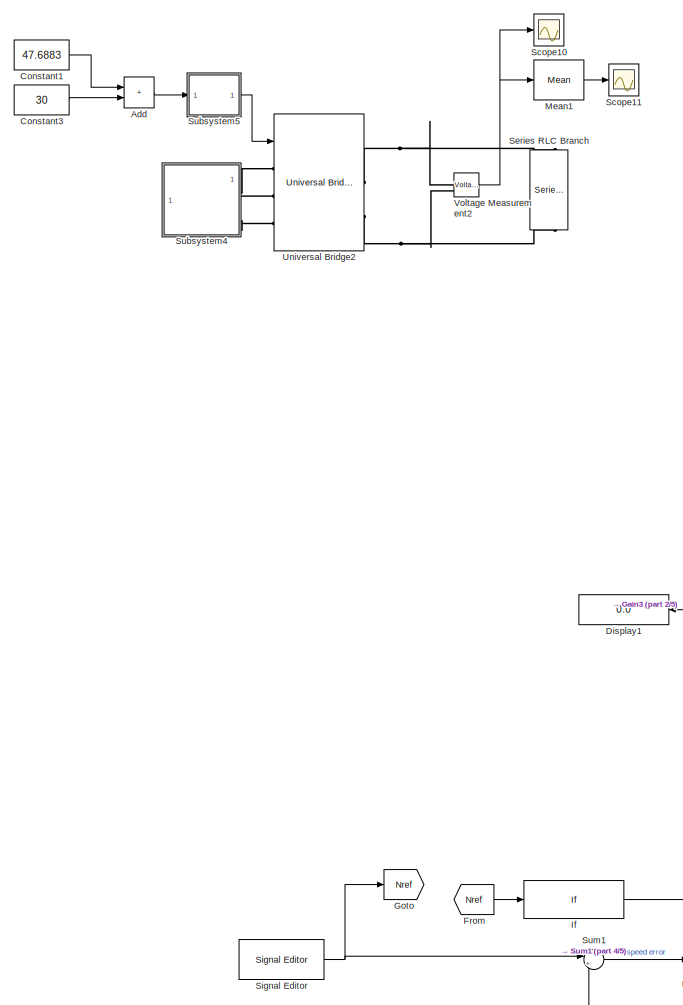
[diagram: root canvas - part 1/5, left side, full height]
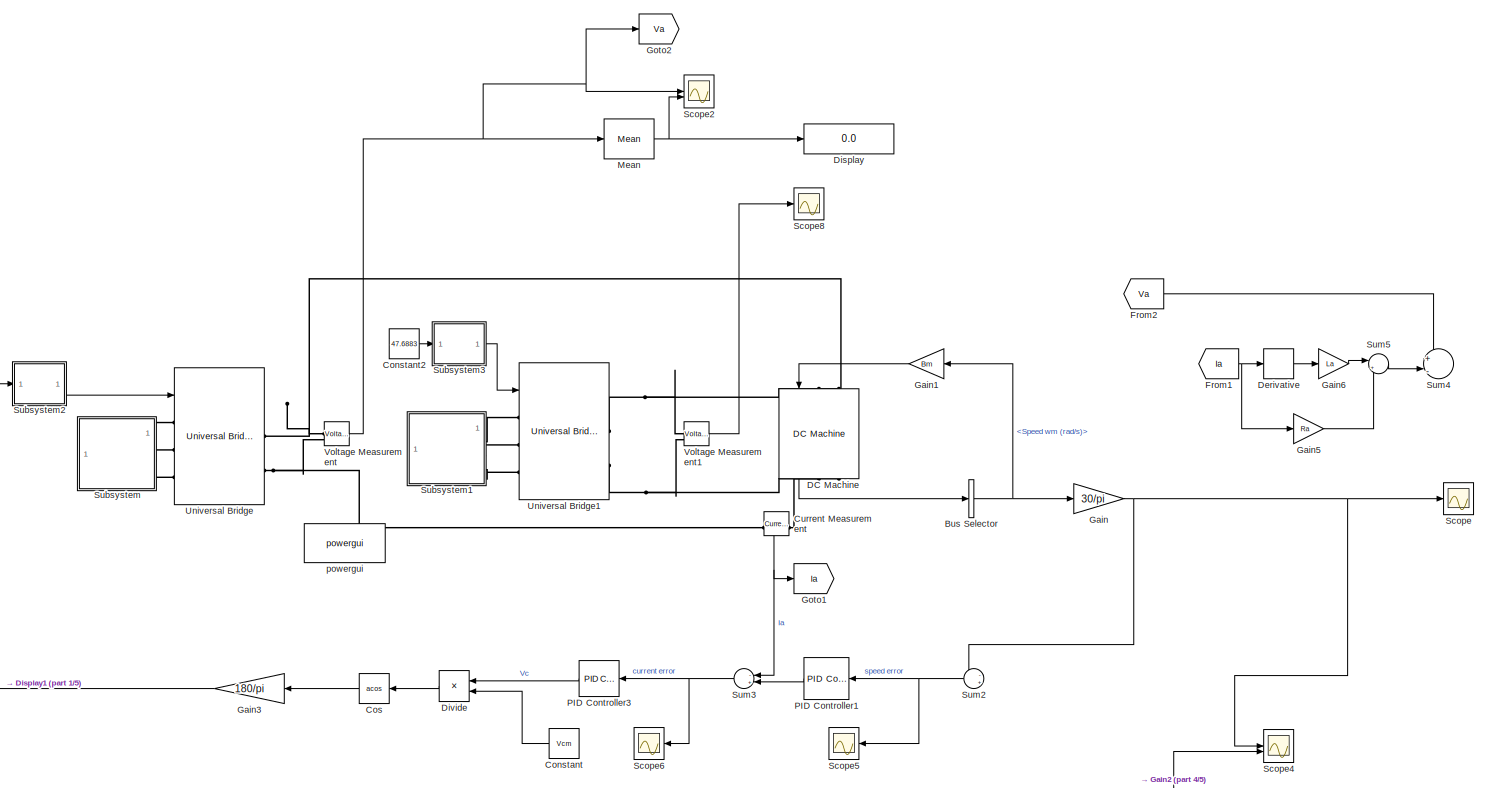
[diagram: root canvas - part 2/5, central region]
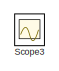
[diagram: root canvas - part 3/5, middle right region]
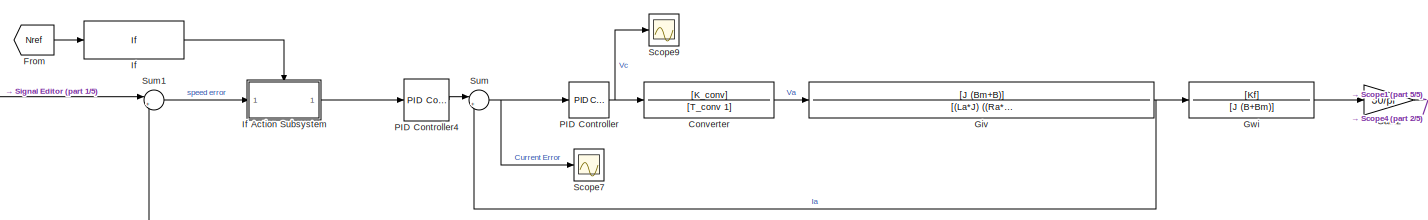
[diagram: root canvas - part 4/5, bottom center region]
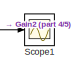
[diagram: root canvas - part 5/5, bottom right region]
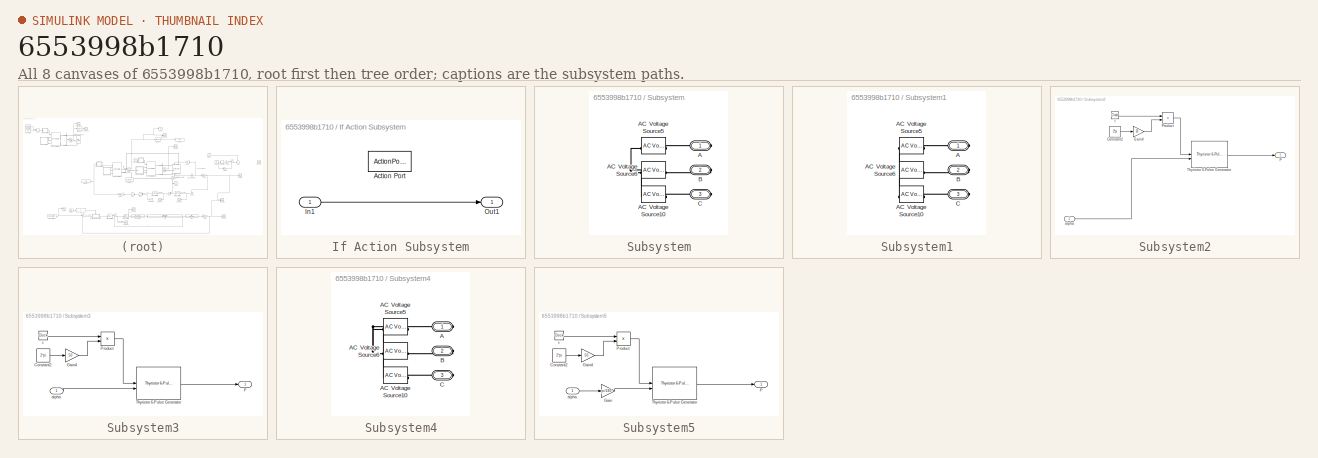
[diagram: thumbnail index - all 8 canvases of the model, root first then tree order]
MODEL slx_6553998b1710
KIND model
CONFIG AbsTol = auto
CONFIG EnableMultiTasking = off
CONFIG FixedStep = auto
CONFIG MaxStep = auto
CONFIG MinStep = auto
CONFIG RelTol = 1e-3
CONFIG SampleTimeConstraint = Unconstrained
CONFIG SolverName = VariableStepAuto
CONFIG StartTime = 0.0
CONFIG StopTime = 20
BLOCK [Sum] Add
  IconShape = rectangular
BLOCK [BusSelector] Bus Selector
  OutputSignals = Speed wm (rad/s)
BLOCK [Constant] Constant
  NameLocation = top
  Value = Vcm
BLOCK [Constant] Constant1
  Value = 47.6883
BLOCK [Constant] Constant2
  Value = 47.6883
BLOCK [Constant] Constant3
  Value = 30
BLOCK [TransferFcn] Converter
  Denominator = [T_conv 1]
  Numerator = [K_conv]
BLOCK [Trigonometry] Cos
  NameLocation = top
  Operator = acos
BLOCK [Reference] Current Measurement  REF=spsCurrentMeasurementLib/Current Measurement
  LibrarySourceBlock = sps_lib/Sensors and Measurements/Current Measurement
  NameLocation = top
  SourceBlock = spsCurrentMeasurementLib/Current Measurement
  SourceType = Current Measurement
  UserDataPersistent = on
BLOCK [Reference] DC Machine  REF=spsDCMachineLib/DC Machine
  LibrarySourceBlock = sps_lib/Electrical Machines/DC Machine
  NameLocation = left
  SourceBlock = spsDCMachineLib/DC Machine
  SourceType = DC machine
BLOCK [Derivative] Derivative
BLOCK [Display] Display
  Decimation = 1
BLOCK [Display] Display1
  Decimation = 1
  NameLocation = top
BLOCK [Product] Divide
  Inputs = */
  NameLocation = top
BLOCK [From] From
  GotoTag = Nref
BLOCK [From] From1
  GotoTag = Ia
BLOCK [From] From2
  GotoTag = Va
BLOCK [Gain] Gain
  Gain = 30/pi
BLOCK [Gain] Gain1
  Gain = Bm
  NameLocation = top
BLOCK [Gain] Gain2
  Gain = 30/pi
BLOCK [Gain] Gain3
  Gain = 180/pi
  NameLocation = top
BLOCK [Gain] Gain5
  Gain = Ra
BLOCK [Gain] Gain6
  Gain = La
BLOCK [TransferFcn] Giv
  Denominator = [(La*J) ((Ra*J)+((Bm+B)*La)) (Ra*(Bm+B)+Kf^2) ]
  Numerator = [J (Bm+B)]
BLOCK [Goto] Goto
  GotoTag = Nref
BLOCK [Goto] Goto1
  GotoTag = Ia
BLOCK [Goto] Goto2
  GotoTag = Va
BLOCK [TransferFcn] Gwi
  Denominator = [J (B+Bm)]
  Numerator = [Kf]
BLOCK [If] If
  IfExpression = u1 <= 1700
BLOCK [SubSystem] If Action Subsystem
  TreatAsAtomicUnit = on
BLOCK [ActionPort] If Action Subsystem/Action Port
  ActionPortLabel = if(u1 <= 1700)
BLOCK [Inport] If Action Subsystem/In1
BLOCK [Outport] If Action Subsystem/Out1
BLOCK [Reference] Mean  REF=spsMeanLib/Mean
  LibrarySourceBlock = sps_lib/Sensors and Measurements/Mean
  SourceBlock = spsMeanLib/Mean
  SourceType = Mean
BLOCK [Reference] Mean1  REF=spsMeanLib/Mean
  LibrarySourceBlock = sps_lib/Sensors and Measurements/Mean
  SourceBlock = spsMeanLib/Mean
  SourceType = Mean
BLOCK [Reference] PID Controller  REF=slpidlib/PID Controller
  LibrarySourceBlock = simulink/Continuous/PID Controller
  SourceBlock = slpidlib/PID Controller
  SourceType = PID 1dof
BLOCK [Reference] PID Controller1  REF=slpidlib/PID Controller
  LibrarySourceBlock = simulink/Continuous/PID Controller
  NameLocation = top
  SourceBlock = slpidlib/PID Controller
  SourceType = PID 1dof
BLOCK [Reference] PID Controller3  REF=slpidlib/PID Controller
  LibrarySourceBlock = simulink/Continuous/PID Controller
  NameLocation = top
  SourceBlock = slpidlib/PID Controller
  SourceType = PID 1dof
BLOCK [Reference] PID Controller4  REF=slpidlib/PID Controller
  LibrarySourceBlock = simulink/Continuous/PID Controller
  SourceBlock = slpidlib/PID Controller
  SourceType = PID 1dof
BLOCK [Scope] Scope
  Floating = off
  NumInputPorts = 1
  ScopeSpecificationString = Simulink.scopes.TimeScopeBlockCfg('CurrentConfiguration', extmgr.ConfigurationSet(extmgr.Configuration('Core','General UI',true),extmgr.Configuration('Core','Source UI',true),extmgr.Configuration('Sources','WiredSimulink',true,'DataLoggingVariableName','ScopeData1'),extmgr.Configuration('Visuals','Time Domain',true,'SerializedDisplays',{struct('MinYLimReal','-110.29353','MaxYLimReal','1052.98425',...<+1406ch>
BLOCK [Scope] Scope1
  Floating = off
  NumInputPorts = 1
  ScopeSpecificationString = Simulink.scopes.TimeScopeBlockCfg('CurrentConfiguration', extmgr.ConfigurationSet(extmgr.Configuration('Core','General UI',true),extmgr.Configuration('Core','Source UI',true),extmgr.Configuration('Sources','WiredSimulink',true,'DataLoggingVariableName','ScopeData2'),extmgr.Configuration('Visuals','Time Domain',true,'SerializedDisplays',{struct('MinYLimReal','-110.82176','MaxYLimReal','997.3958','Y...<+1428ch>
BLOCK [Scope] Scope10
  Floating = off
  NumInputPorts = 1
  ScopeSpecificationString = Simulink.scopes.TimeScopeBlockCfg('CurrentConfiguration', extmgr.ConfigurationSet(extmgr.Configuration('Core','General UI',true),extmgr.Configuration('Core','Source UI',true),extmgr.Configuration('Sources','WiredSimulink',true,'DataLoggingVariableName','ScopeData10'),extmgr.Configuration('Visuals','Time Domain',true,'SerializedDisplays',{struct('MinYLimReal','-47.62187','MaxYLimReal','428.59686','...<+1444ch>
BLOCK [Scope] Scope11
  Floating = off
  NumInputPorts = 1
  ScopeSpecificationString = Simulink.scopes.TimeScopeBlockCfg('CurrentConfiguration', extmgr.ConfigurationSet(extmgr.Configuration('Core','General UI',true),extmgr.Configuration('Core','Source UI',true),extmgr.Configuration('Sources','WiredSimulink',true,'DataLoggingVariableName','ScopeData11'),extmgr.Configuration('Visuals','Time Domain',true,'SerializedDisplays',{struct('MinYLimReal','330.78617','MaxYLimReal','372.35253','...<+1452ch>
BLOCK [Scope] Scope2
  Floating = off
  NumInputPorts = 2
  ScopeSpecificationString = Simulink.scopes.TimeScopeBlockCfg('CurrentConfiguration', extmgr.ConfigurationSet(extmgr.Configuration('Core','General UI',true),extmgr.Configuration('Core','Source UI',true),extmgr.Configuration('Sources','WiredSimulink',true,'DataLoggingVariableName','ScopeData3'),extmgr.Configuration('Visuals','Time Domain',true,'SerializedDisplays',{struct('MinYLimReal','-454.89397','MaxYLimReal','547.16696','...<+2136ch>
BLOCK [Scope] Scope3
  Floating = off
  NumInputPorts = 1
  ScopeSpecificationString = Simulink.scopes.TimeScopeBlockCfg('CurrentConfiguration', extmgr.ConfigurationSet(extmgr.Configuration('Core','General UI',true),extmgr.Configuration('Core','Source UI',true),extmgr.Configuration('Sources','WiredSimulink',true,'DataLoggingVariableName','ScopeData4'),extmgr.Configuration('Visuals','Time Domain',true,'SerializedDisplays',{struct('MinYLimReal','-1616.44946','MaxYLimReal','1856.60898'...<+1445ch>
BLOCK [Scope] Scope4
  Floating = off
  NumInputPorts = 2
  ScopeSpecificationString = Simulink.scopes.TimeScopeBlockCfg('CurrentConfiguration', extmgr.ConfigurationSet(extmgr.Configuration('Core','General UI',true),extmgr.Configuration('Core','Source UI',true),extmgr.Configuration('Sources','WiredSimulink',true,'DataLoggingVariableName','ScopeData5'),extmgr.Configuration('Visuals','Time Domain',true,'SerializedDisplays',{struct('MinYLimReal','-123.36276','MaxYLimReal','1110.26488',...<+1462ch>
BLOCK [Scope] Scope5
  Floating = off
  NameLocation = top
  NumInputPorts = 1
  ScopeSpecificationString = Simulink.scopes.TimeScopeBlockCfg('CurrentConfiguration', extmgr.ConfigurationSet(extmgr.Configuration('Core','General UI',true),extmgr.Configuration('Core','Source UI',true),extmgr.Configuration('Sources','WiredSimulink',true,'DataLoggingVariableName','ScopeData6'),extmgr.Configuration('Visuals','Time Domain',true,'SerializedDisplays',{struct('MinYLimReal','789.25676','MaxYLimReal','801.19619','Y...<+1463ch>
BLOCK [Scope] Scope6
  Floating = off
  NameLocation = top
  NumInputPorts = 1
  ScopeSpecificationString = Simulink.scopes.TimeScopeBlockCfg('CurrentConfiguration', extmgr.ConfigurationSet(extmgr.Configuration('Core','General UI',true),extmgr.Configuration('Core','Source UI',true),extmgr.Configuration('Sources','WiredSimulink',true,'DataLoggingVariableName','ScopeData7'),extmgr.Configuration('Visuals','Time Domain',true,'SerializedDisplays',{struct('MinYLimReal','15.9431','MaxYLimReal','16.06383','YLab...<+1428ch>
BLOCK [Scope] Scope7
  Floating = off
  NumInputPorts = 1
  ScopeSpecificationString = Simulink.scopes.TimeScopeBlockCfg('CurrentConfiguration', extmgr.ConfigurationSet(extmgr.Configuration('Core','General UI',true),extmgr.Configuration('Core','Source UI',true),extmgr.Configuration('Sources','WiredSimulink',true,'DataLoggingVariableName','ScopeData8'),extmgr.Configuration('Visuals','Time Domain',true,'SerializedDisplays',{struct('MinYLimReal','-69.2736','MaxYLimReal','504.00759','YL...<+1459ch>
BLOCK [Scope] Scope8
  Floating = off
  NumInputPorts = 1
  ScopeSpecificationString = Simulink.scopes.TimeScopeBlockCfg('CurrentConfiguration', extmgr.ConfigurationSet(extmgr.Configuration('Core','General UI',true),extmgr.Configuration('Core','Source UI',true),extmgr.Configuration('Sources','WiredSimulink',true,'DataLoggingVariableName','ScopeData9'),extmgr.Configuration('Visuals','Time Domain',true,'SerializedDisplays',{struct('MinYLimReal','-1.00000','MaxYLimReal','1.00000','YLab...<+1404ch>
BLOCK [Scope] Scope9
  Floating = off
  NumInputPorts = 1
  ScopeSpecificationString = Simulink.scopes.TimeScopeBlockCfg('CurrentConfiguration', extmgr.ConfigurationSet(extmgr.Configuration('Core','General UI',true),extmgr.Configuration('Core','Source UI',true),extmgr.Configuration('Sources','WiredSimulink',true),extmgr.Configuration('Visuals','Time Domain',true,'SerializedDisplays',{struct('MinYLimReal','147.34138','MaxYLimReal','244.74696','YLabelReal','','MinYLimMag','147.34138',...<+1415ch>
BLOCK [Reference] Series RLC Branch  REF=spsSeriesRLCBranchLib/Series RLC Branch
  LibrarySourceBlock = sps_lib/Passives/Series RLC Branch
  NameLocation = left
  SourceBlock = spsSeriesRLCBranchLib/Series RLC Branch
  SourceType = Series RLC Branch
BLOCK [Reference] Signal Editor  REF=SignalEditorBlockLib/Signal Editor
  LibrarySourceBlock = simulink/Sources/Signal Editor
  SourceBlock = SignalEditorBlockLib/Signal Editor
  SourceType = SignalEditor
  UserDataPersistent = on
BLOCK [SubSystem] Subsystem
BLOCK [PMIOPort] Subsystem/A
  Side = Right
BLOCK [Reference] Subsystem/AC Voltage Source10  REF=spsACVoltageSourceLib/AC Voltage Source
  NameLocation = left
  SourceBlock = spsACVoltageSourceLib/AC Voltage Source
  SourceType = AC Voltage Source
BLOCK [Reference] Subsystem/AC Voltage Source5  REF=spsACVoltageSourceLib/AC Voltage Source
  NameLocation = left
  SourceBlock = spsACVoltageSourceLib/AC Voltage Source
  SourceType = AC Voltage Source
BLOCK [Reference] Subsystem/AC Voltage Source6  REF=spsACVoltageSourceLib/AC Voltage Source
  NameLocation = left
  SourceBlock = spsACVoltageSourceLib/AC Voltage Source
  SourceType = AC Voltage Source
BLOCK [PMIOPort] Subsystem/B
  Port = 2
  Side = Right
BLOCK [PMIOPort] Subsystem/C
  Port = 3
  Side = Right
BLOCK [SubSystem] Subsystem1
BLOCK [PMIOPort] Subsystem1/A
  Side = Right
BLOCK [Reference] Subsystem1/AC Voltage Source10  REF=spsACVoltageSourceLib/AC Voltage Source
  NameLocation = left
  SourceBlock = spsACVoltageSourceLib/AC Voltage Source
  SourceType = AC Voltage Source
BLOCK [Reference] Subsystem1/AC Voltage Source5  REF=spsACVoltageSourceLib/AC Voltage Source
  NameLocation = left
  SourceBlock = spsACVoltageSourceLib/AC Voltage Source
  SourceType = AC Voltage Source
BLOCK [Reference] Subsystem1/AC Voltage Source6  REF=spsACVoltageSourceLib/AC Voltage Source
  NameLocation = left
  SourceBlock = spsACVoltageSourceLib/AC Voltage Source
  SourceType = AC Voltage Source
BLOCK [PMIOPort] Subsystem1/B
  Port = 2
  Side = Right
BLOCK [PMIOPort] Subsystem1/C
  Port = 3
  Side = Right
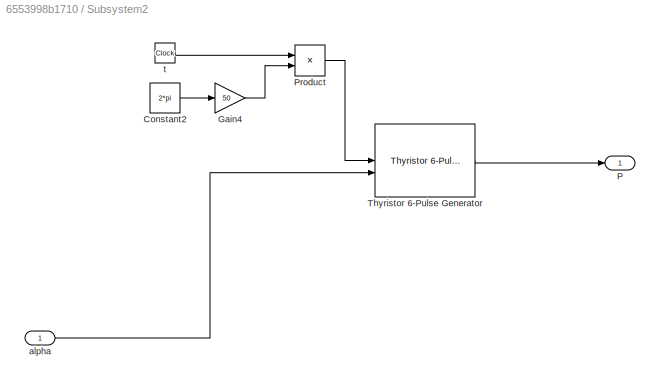
BLOCK [SubSystem] Subsystem2
BLOCK [Constant] Subsystem2/Constant2
  Value = 2*pi
BLOCK [Gain] Subsystem2/Gain4
  Gain = 50
BLOCK [Outport] Subsystem2/P
BLOCK [Product] Subsystem2/Product
BLOCK [Reference] Subsystem2/Thyristor 6-Pulse Generator  REF=eeThyristorSixPulseGenerator/Thyristor 6-Pulse
Generator
  LibrarySourceBlock = ee_sl_lib/Pulse Width\nModulation/Thyristor 6-Pulse\nGenerator
  SourceBlock = eeThyristorSixPulseGenerator/Thyristor 6-Pulse\nGenerator
  SourceType = Thyristor 6-Pulse Generator
BLOCK [Inport] Subsystem2/alpha
BLOCK [Clock] Subsystem2/t
BLOCK [SubSystem] Subsystem3
BLOCK [Constant] Subsystem3/Constant2
  Value = 2*pi
BLOCK [Gain] Subsystem3/Gain4
  Gain = 50
BLOCK [Outport] Subsystem3/P
BLOCK [Product] Subsystem3/Product
BLOCK [Reference] Subsystem3/Thyristor 6-Pulse Generator  REF=eeThyristorSixPulseGenerator/Thyristor 6-Pulse
Generator
  LibrarySourceBlock = ee_sl_lib/Pulse Width\nModulation/Thyristor 6-Pulse\nGenerator
  SourceBlock = eeThyristorSixPulseGenerator/Thyristor 6-Pulse\nGenerator
  SourceType = Thyristor 6-Pulse Generator
BLOCK [Inport] Subsystem3/alpha
BLOCK [Clock] Subsystem3/t
BLOCK [SubSystem] Subsystem4
BLOCK [PMIOPort] Subsystem4/A
  Side = Right
BLOCK [Reference] Subsystem4/AC Voltage Source10  REF=spsACVoltageSourceLib/AC Voltage Source
  NameLocation = left
  SourceBlock = spsACVoltageSourceLib/AC Voltage Source
  SourceType = AC Voltage Source
BLOCK [Reference] Subsystem4/AC Voltage Source5  REF=spsACVoltageSourceLib/AC Voltage Source
  NameLocation = left
  SourceBlock = spsACVoltageSourceLib/AC Voltage Source
  SourceType = AC Voltage Source
BLOCK [Reference] Subsystem4/AC Voltage Source6  REF=spsACVoltageSourceLib/AC Voltage Source
  NameLocation = left
  SourceBlock = spsACVoltageSourceLib/AC Voltage Source
  SourceType = AC Voltage Source
BLOCK [PMIOPort] Subsystem4/B
  Port = 2
  Side = Right
BLOCK [PMIOPort] Subsystem4/C
  Port = 3
  Side = Right
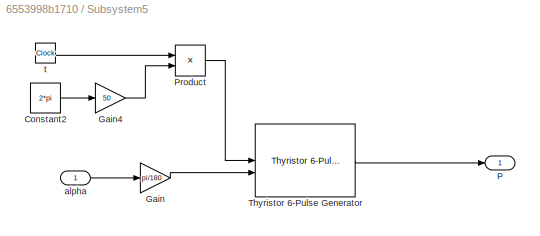
BLOCK [SubSystem] Subsystem5
BLOCK [Constant] Subsystem5/Constant2
  Value = 2*pi
BLOCK [Gain] Subsystem5/Gain
  Gain = pi/180
BLOCK [Gain] Subsystem5/Gain4
  Gain = 50
BLOCK [Outport] Subsystem5/P
BLOCK [Product] Subsystem5/Product
BLOCK [Reference] Subsystem5/Thyristor 6-Pulse Generator  REF=eeThyristorSixPulseGenerator/Thyristor 6-Pulse
Generator
  LibrarySourceBlock = ee_sl_lib/Pulse Width\nModulation/Thyristor 6-Pulse\nGenerator
  SourceBlock = eeThyristorSixPulseGenerator/Thyristor 6-Pulse\nGenerator
  SourceType = Thyristor 6-Pulse Generator
BLOCK [Inport] Subsystem5/alpha
BLOCK [Clock] Subsystem5/t
BLOCK [Sum] Sum
  Inputs = |+-
BLOCK [Sum] Sum1
  Inputs = |+-
BLOCK [Sum] Sum2
  Inputs = -+|
  NameLocation = top
BLOCK [Sum] Sum3
  Inputs = -+|
  NameLocation = top
BLOCK [Sum] Sum4
  Inputs = +|-||
BLOCK [Sum] Sum5
  Inputs = |++
BLOCK [Reference] Universal Bridge  REF=spsUniversalBridgeLib/Universal Bridge
  LibrarySourceBlock = sps_lib/Power Electronics/Universal Bridge
  SourceBlock = spsUniversalBridgeLib/Universal Bridge
  SourceType = Universal Bridge
BLOCK [Reference] Universal Bridge1  REF=spsUniversalBridgeLib/Universal Bridge
  LibrarySourceBlock = sps_lib/Power Electronics/Universal Bridge
  SourceBlock = spsUniversalBridgeLib/Universal Bridge
  SourceType = Universal Bridge
BLOCK [Reference] Universal Bridge2  REF=spsUniversalBridgeLib/Universal Bridge
  LibrarySourceBlock = sps_lib/Power Electronics/Universal Bridge
  SourceBlock = spsUniversalBridgeLib/Universal Bridge
  SourceType = Universal Bridge
BLOCK [Reference] Voltage Measurement  REF=spsVoltageMeasurementLib/Voltage Measurement
  LibrarySourceBlock = sps_lib/Sensors and Measurements/Voltage Measurement
  SourceBlock = spsVoltageMeasurementLib/Voltage Measurement
  SourceType = Voltage Measurement
  UserDataPersistent = on
BLOCK [Reference] Voltage Measurement1  REF=spsVoltageMeasurementLib/Voltage Measurement
  LibrarySourceBlock = sps_lib/Sensors and Measurements/Voltage Measurement
  SourceBlock = spsVoltageMeasurementLib/Voltage Measurement
  SourceType = Voltage Measurement
  UserDataPersistent = on
BLOCK [Reference] Voltage Measurement2  REF=spsVoltageMeasurementLib/Voltage Measurement
  LibrarySourceBlock = sps_lib/Sensors and Measurements/Voltage Measurement
  SourceBlock = spsVoltageMeasurementLib/Voltage Measurement
  SourceType = Voltage Measurement
  UserDataPersistent = on
BLOCK [Reference] powergui  REF=sps_lib/powergui
  Priority = 1
  SourceBlock = sps_lib/powergui
  SourceType = PSB option menu block
LINE Add:1 -> Subsystem5:1
NET Bus Selector:1 -> Gain1:1, Gain:1
LINE Constant1:1 -> Add:1
LINE Constant2:1 -> Subsystem3:1
LINE Constant3:1 -> Add:2
LINE Constant:1 -> Divide:2
LINE Converter:1 -> Giv:1
LINE Cos:1 -> Gain3:1
NET Current Measurement:1 -> Goto1:1, Sum3:1
LINE DC Machine:1 -> Bus Selector:1
LINE Derivative:1 -> Gain6:1
LINE Divide:1 -> Cos:1
NET From1:1 -> Derivative:1, Gain5:1
LINE From2:1 -> Sum4:1
LINE From:1 -> If:1
LINE Gain1:1 -> DC Machine:1
NET Gain2:1 -> Scope1:1, Scope4:2, Sum1:2
NET Gain3:1 -> Display1:1, Subsystem2:1
LINE Gain5:1 -> Sum5:2
LINE Gain6:1 -> Sum5:1
NET Gain:1 -> Scope4:1, Scope:1, Sum2:1
NET Giv:1 -> Gwi:1, Sum:2
LINE Gwi:1 -> Gain2:1
LINE If Action Subsystem/In1:1 -> If Action Subsystem/Out1:1
LINE If Action Subsystem:1 -> PID Controller4:1
LINE If:1 -> If Action Subsystem:ifaction
LINE Mean1:1 -> Scope11:1
NET Mean:1 -> Display:1, Scope2:2
LINE PID Controller1:1 -> Sum3:2
LINE PID Controller3:1 -> Divide:1
LINE PID Controller4:1 -> Sum:1
NET PID Controller:1 -> Converter:1, Scope9:1
NET Signal Editor:1 -> Goto:1, Sum1:1
LINE Subsystem2/Constant2:1 -> Subsystem2/Gain4:1
LINE Subsystem2/Gain4:1 -> Subsystem2/Product:2
LINE Subsystem2/Product:1 -> Subsystem2/Thyristor 6-Pulse Generator:1
LINE Subsystem2/Thyristor 6-Pulse Generator:1 -> Subsystem2/P:1
LINE Subsystem2/alpha:1 -> Subsystem2/Thyristor 6-Pulse Generator:2
LINE Subsystem2/t:1 -> Subsystem2/Product:1
LINE Subsystem2:1 -> Universal Bridge:1
LINE Subsystem3/Constant2:1 -> Subsystem3/Gain4:1
LINE Subsystem3/Gain4:1 -> Subsystem3/Product:2
LINE Subsystem3/Product:1 -> Subsystem3/Thyristor 6-Pulse Generator:1
LINE Subsystem3/Thyristor 6-Pulse Generator:1 -> Subsystem3/P:1
LINE Subsystem3/alpha:1 -> Subsystem3/Thyristor 6-Pulse Generator:2
LINE Subsystem3/t:1 -> Subsystem3/Product:1
LINE Subsystem3:1 -> Universal Bridge1:1
LINE Subsystem5/Constant2:1 -> Subsystem5/Gain4:1
LINE Subsystem5/Gain4:1 -> Subsystem5/Product:2
LINE Subsystem5/Gain:1 -> Subsystem5/Thyristor 6-Pulse Generator:2
LINE Subsystem5/Product:1 -> Subsystem5/Thyristor 6-Pulse Generator:1
LINE Subsystem5/Thyristor 6-Pulse Generator:1 -> Subsystem5/P:1
LINE Subsystem5/alpha:1 -> Subsystem5/Gain:1
LINE Subsystem5/t:1 -> Subsystem5/Product:1
LINE Subsystem5:1 -> Universal Bridge2:1
LINE Sum1:1 -> If Action Subsystem:1
NET Sum2:1 -> PID Controller1:1, Scope5:1
NET Sum3:1 -> PID Controller3:1, Scope6:1
LINE Sum5:1 -> Sum4:2
NET Sum:1 -> PID Controller:1, Scope7:1
LINE Voltage Measurement1:1 -> Scope8:1
NET Voltage Measurement2:1 -> Mean1:1, Scope10:1
NET Voltage Measurement:1 -> Goto2:1, Mean:1, Scope2:1
PLINE Current Measurement:LConn1 -- DC Machine:RConn1
PNET net1: Current Measurement:RConn1 -- Universal Bridge:RConn2 -- Voltage Measurement:LConn2
PNET net2: DC Machine:LConn1 -- Universal Bridge:RConn1 -- Voltage Measurement:LConn1
PNET net3: DC Machine:LConn2 -- Universal Bridge1:RConn1 -- Voltage Measurement1:LConn1
PNET net4: DC Machine:RConn2 -- Universal Bridge1:RConn2 -- Voltage Measurement1:LConn2
PNET net5: Series RLC Branch:LConn1 -- Universal Bridge2:RConn1 -- Voltage Measurement2:LConn1
PNET net6: Series RLC Branch:RConn1 -- Universal Bridge2:RConn2 -- Voltage Measurement2:LConn2
PLINE Subsystem/A:RConn1 -- Subsystem/AC Voltage Source5:RConn1
PNET net7: Subsystem/AC Voltage Source10:LConn1 -- Subsystem/AC Voltage Source5:LConn1 -- Subsystem/AC Voltage Source6:LConn1
PLINE Subsystem/AC Voltage Source10:RConn1 -- Subsystem/C:RConn1
PLINE Subsystem/AC Voltage Source6:RConn1 -- Subsystem/B:RConn1
PLINE Subsystem1/A:RConn1 -- Subsystem1/AC Voltage Source5:RConn1
PNET net8: Subsystem1/AC Voltage Source10:LConn1 -- Subsystem1/AC Voltage Source5:LConn1 -- Subsystem1/AC Voltage Source6:LConn1
PLINE Subsystem1/AC Voltage Source10:RConn1 -- Subsystem1/C:RConn1
PLINE Subsystem1/AC Voltage Source6:RConn1 -- Subsystem1/B:RConn1
PLINE Subsystem1:RConn1 -- Universal Bridge1:LConn1
PLINE Subsystem1:RConn2 -- Universal Bridge1:LConn2
PLINE Subsystem1:RConn3 -- Universal Bridge1:LConn3
PLINE Subsystem4/A:RConn1 -- Subsystem4/AC Voltage Source5:RConn1
PNET net9: Subsystem4/AC Voltage Source10:LConn1 -- Subsystem4/AC Voltage Source5:LConn1 -- Subsystem4/AC Voltage Source6:LConn1
PLINE Subsystem4/AC Voltage Source10:RConn1 -- Subsystem4/C:RConn1
PLINE Subsystem4/AC Voltage Source6:RConn1 -- Subsystem4/B:RConn1
PLINE Subsystem4:RConn1 -- Universal Bridge2:LConn1
PLINE Subsystem4:RConn2 -- Universal Bridge2:LConn2
PLINE Subsystem4:RConn3 -- Universal Bridge2:LConn3
PLINE Subsystem:RConn1 -- Universal Bridge:LConn1
PLINE Subsystem:RConn2 -- Universal Bridge:LConn2
PLINE Subsystem:RConn3 -- Universal Bridge:LConn3
note: NET lines group one-source signal fan-out (src -> all destinations, sorted); 1:1 wires keep LINE; PNET lines group multi-terminal physical nets as a canonical sorted terminal list (undirected conserving connections); 2-terminal nets keep the pairwise PLINE form
